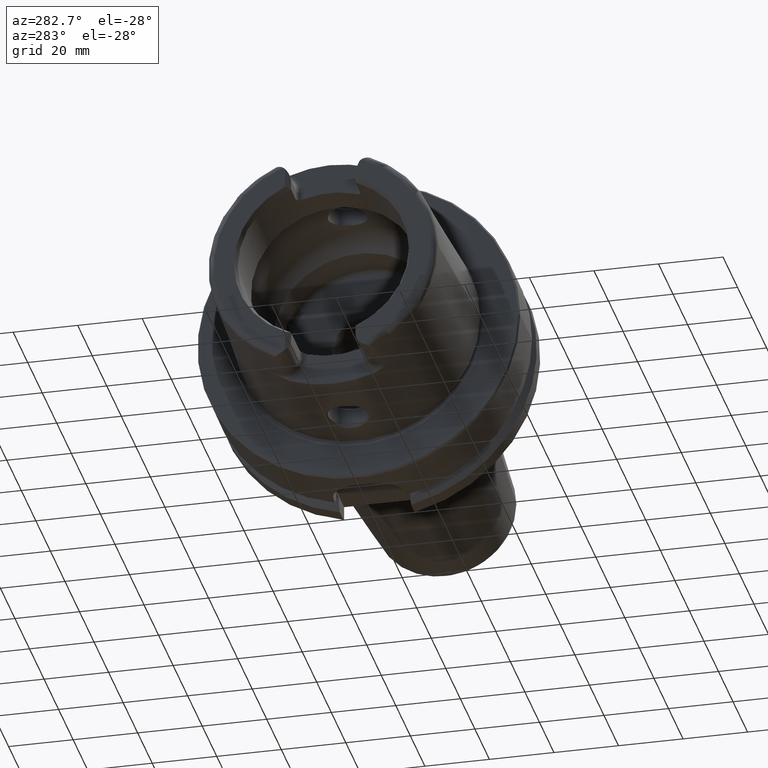
[diagram: clean part render]
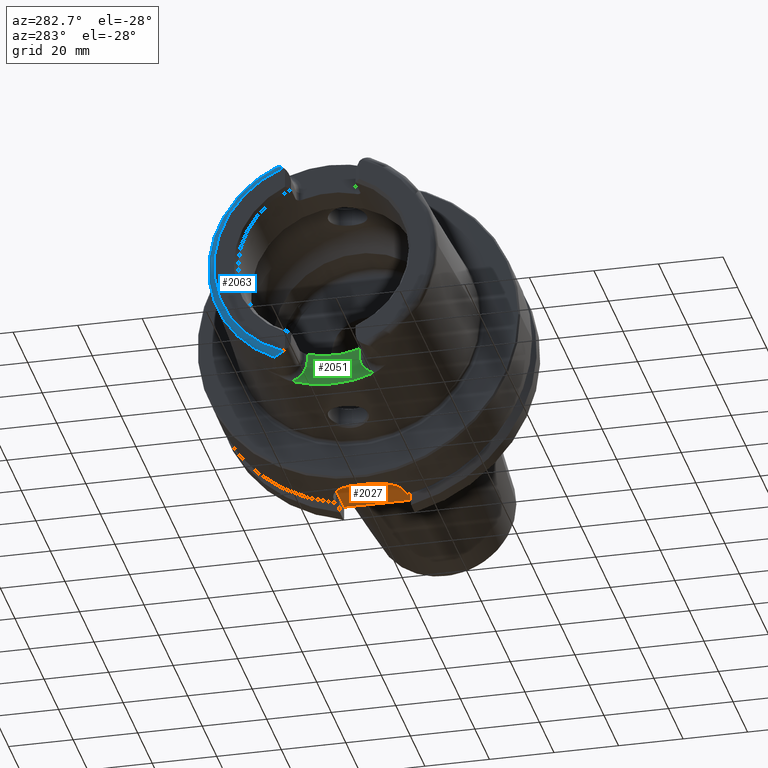
[diagram: same view with three faces highlighted in distinct colors, each labeled with its STEP entity id]
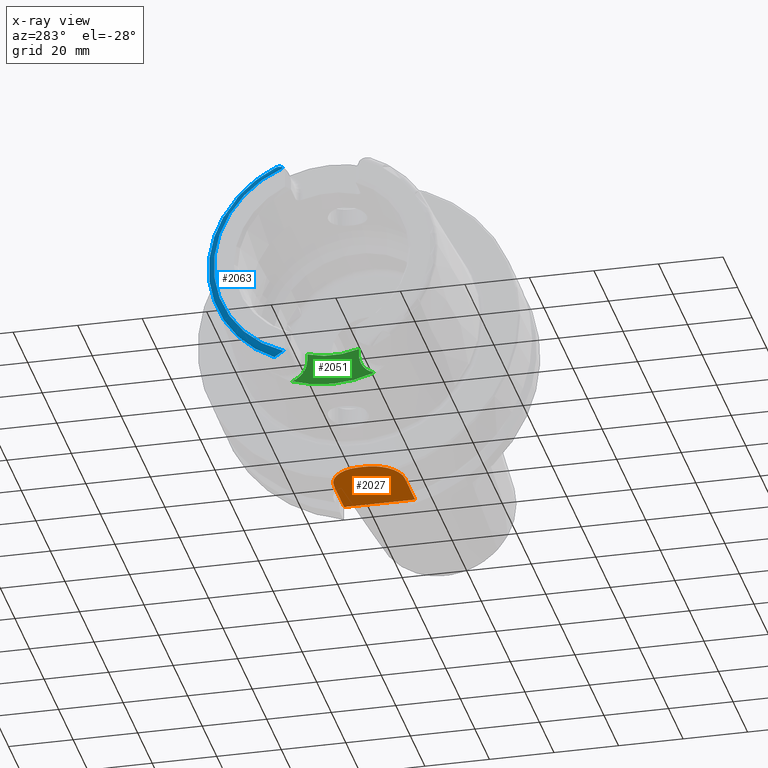
[diagram: x-ray of the same camera — body ghosted, the three highlighted faces saturated]
A machine part, auxiliary view with three faces highlighted in distinct colors.
The next image is the same camera in x-ray (body ghosted, the three faces saturated) — at least one of them is partly hidden behind the body in this view.
Their STEP definitions:

[orange] entity #2027 — the highlighted planar face has unit normal (0, 0, 1).
#118=PLANE('',#2247);
#265=FACE_OUTER_BOUND('',#393,.T.);
#393=EDGE_LOOP('',(#1659,#1660,#1661,#1662,#1663,#1664));
#467=LINE('',#3045,#574);
#524=LINE('',#4130,#631);
#536=LINE('',#4224,#643);
#538=LINE('',#4230,#645);
#574=VECTOR('',#2429,10.);
#631=VECTOR('',#2694,10.);
#643=VECTOR('',#2712,10.);
#645=VECTOR('',#2720,10.);
#741=CIRCLE('',#2242,10.);
#742=CIRCLE('',#2245,10.);
#820=VERTEX_POINT('',#3042);
#821=VERTEX_POINT('',#3044);
#947=VERTEX_POINT('',#4129);
#955=VERTEX_POINT('',#4170);
#956=VERTEX_POINT('',#4172);
#965=VERTEX_POINT('',#4226);
#1031=EDGE_CURVE('',#820,#821,#467,.T.);
#1200=EDGE_CURVE('',#821,#947,#524,.T.);
#1211=EDGE_CURVE('',#955,#956,#741,.T.);
#1222=EDGE_CURVE('',#956,#820,#536,.T.);
#1223=EDGE_CURVE('',#947,#965,#742,.T.);
#1225=EDGE_CURVE('',#965,#955,#538,.T.);
#1659=ORIENTED_EDGE('',*,*,#1225,.F.);
#1660=ORIENTED_EDGE('',*,*,#1223,.F.);
#1661=ORIENTED_EDGE('',*,*,#1200,.F.);
#1662=ORIENTED_EDGE('',*,*,#1031,.F.);
#1663=ORIENTED_EDGE('',*,*,#1222,.F.);
#1664=ORIENTED_EDGE('',*,*,#1211,.F.);
#2027=ADVANCED_FACE('',(#265),#118,.F.);
#2242=AXIS2_PLACEMENT_3D('',#4173,#2703,#2704);
#2245=AXIS2_PLACEMENT_3D('',#4227,#2715,#2716);
#2247=AXIS2_PLACEMENT_3D('',#4231,#2721,#2722);
#2429=DIRECTION('',(0.,1.,0.));
#2694=DIRECTION('',(-1.,-1.58603289232165E-16,0.));
#2703=DIRECTION('center_axis',(0.,0.,1.));
#2704=DIRECTION('ref_axis',(-1.,-2.4980018054066E-16,0.));
#2712=DIRECTION('',(1.,1.58603289232165E-16,0.));
#2715=DIRECTION('center_axis',(0.,0.,1.));
#2716=DIRECTION('ref_axis',(-2.22044604925031E-16,1.,0.));
#2720=DIRECTION('',(0.,-1.,0.));
#2721=DIRECTION('center_axis',(0.,0.,1.));
#2722=DIRECTION('ref_axis',(1.,0.,0.));
#3042=CARTESIAN_POINT('',(29.,-11.,-44.));
#3044=CARTESIAN_POINT('',(29.,11.,-44.));
#3045=CARTESIAN_POINT('',(29.,-5.55111512312578E-16,-44.));
#4129=CARTESIAN_POINT('',(15.,11.,-44.));
#4130=CARTESIAN_POINT('',(29.,11.,-44.));
#4170=CARTESIAN_POINT('',(4.99999999999999,-1.00000000000001,-44.));
#4172=CARTESIAN_POINT('',(15.,-11.,-44.));
#4173=CARTESIAN_POINT('Origin',(15.,-1.,-44.));
#4224=CARTESIAN_POINT('',(15.,-11.,-44.));
#4226=CARTESIAN_POINT('',(4.99999999999999,0.999999999999997,-44.));
#4227=CARTESIAN_POINT('Origin',(15.,1.,-44.));
#4230=CARTESIAN_POINT('',(4.99999999999999,0.999999999999997,-44.));
#4231=CARTESIAN_POINT('Origin',(17.,-1.11022302462516E-15,-44.));

[blue] entity #2063 — the highlighted toroidal blend (fillet) surface has major radius 33.6002 mm and minor (blend) radius 2 mm.
#31=B_SPLINE_CURVE_WITH_KNOTS('',3,(#3106,#3107,#3108,#3109,#3110,#3111,
#3112,#3113,#3114,#3115,#3116,#3117),.UNSPECIFIED.,.F.,.F.,(4,2,2,2,2,4),
(-0.744485085130335,-0.701284148098614,-0.656581713087918,-0.531183195108729,
-0.406814905045398,-0.320767863003946),.UNSPECIFIED.);
#36=B_SPLINE_CURVE_WITH_KNOTS('',3,(#3225,#3226,#3227,#3228,#3229,#3230,
#3231,#3232,#3233,#3234,#3235,#3236),.UNSPECIFIED.,.F.,.F.,(4,2,2,2,2,4),
(-0.33049294128038,-0.267730672592795,-0.15978363726818,-0.0785649842435549,
-0.0319753598823885,-6.79221864813266E-5),.UNSPECIFIED.);
#154=TOROIDAL_SURFACE('',#2312,33.6001839277785,2.);
#301=FACE_OUTER_BOUND('',#429,.T.);
#429=EDGE_LOOP('',(#1828,#1829,#1830,#1831));
#711=CIRCLE('',#2190,35.5976786130245);
#772=CIRCLE('',#2313,33.6001839277785);
#842=VERTEX_POINT('',#3103);
#843=VERTEX_POINT('',#3105);
#868=VERTEX_POINT('',#3215);
#869=VERTEX_POINT('',#3224);
#1060=EDGE_CURVE('',#843,#842,#31,.T.);
#1092=EDGE_CURVE('',#869,#868,#36,.T.);
#1111=EDGE_CURVE('',#843,#868,#711,.T.);
#1283=EDGE_CURVE('',#842,#869,#772,.T.);
#1828=ORIENTED_EDGE('',*,*,#1092,.T.);
#1829=ORIENTED_EDGE('',*,*,#1111,.F.);
#1830=ORIENTED_EDGE('',*,*,#1060,.T.);
#1831=ORIENTED_EDGE('',*,*,#1283,.T.);
#2063=ADVANCED_FACE('',(#301),#154,.T.);
#2190=AXIS2_PLACEMENT_3D('',#3493,#2566,#2567);
#2312=AXIS2_PLACEMENT_3D('',#4424,#2869,#2870);
#2313=AXIS2_PLACEMENT_3D('',#4425,#2871,#2872);
#2566=DIRECTION('center_axis',(1.,0.,0.));
#2567=DIRECTION('ref_axis',(0.,0.,-1.));
#2869=DIRECTION('center_axis',(1.,0.,0.));
#2870=DIRECTION('ref_axis',(0.,0.,-1.));
#2871=DIRECTION('center_axis',(1.,0.,0.));
#2872=DIRECTION('ref_axis',(0.,0.,-1.));
#3103=CARTESIAN_POINT('',(-50.,12.0743049948301,-31.355757348091));
#3105=CARTESIAN_POINT('',(-48.1000748840304,15.0787152148571,-32.2463497175327));
#3106=CARTESIAN_POINT('Ctrl Pts',(-48.1000748840304,15.0787152148571,-32.2463497175327));
#3107=CARTESIAN_POINT('Ctrl Pts',(-48.2105289331959,15.0644723890649,-32.2469009162952));
#3108=CARTESIAN_POINT('Ctrl Pts',(-48.3152849211513,15.0274043790922,-32.2483365520296));
#3109=CARTESIAN_POINT('Ctrl Pts',(-48.5158350355592,14.9227249886344,-32.2501807122049));
#3110=CARTESIAN_POINT('Ctrl Pts',(-48.6114759122293,14.853948633775,-32.2504380099703));
#3111=CARTESIAN_POINT('Ctrl Pts',(-48.9444340259589,14.5699075364914,-32.2439932048825));
#3112=CARTESIAN_POINT('Ctrl Pts',(-49.1873237794489,14.2618237213855,-32.2229124522755));
#3113=CARTESIAN_POINT('Ctrl Pts',(-49.6096022065355,13.5557805634606,-32.0777680620402));
#3114=CARTESIAN_POINT('Ctrl Pts',(-49.7790094341757,13.1775605707035,-31.9575317726829));
#3115=CARTESIAN_POINT('Ctrl Pts',(-49.9573633441756,12.558596693048,-31.6661869684752));
#3116=CARTESIAN_POINT('Ctrl Pts',(-50.,12.3094122367882,-31.5218463066117));
#3117=CARTESIAN_POINT('Ctrl Pts',(-50.,12.0743049948301,-31.355757348091));
#3215=CARTESIAN_POINT('',(-48.1000748840304,15.0787152148571,32.2463497175327));
#3224=CARTESIAN_POINT('',(-50.,12.0743049948301,31.355757348091));
#3225=CARTESIAN_POINT('Ctrl Pts',(-50.,12.0743049948301,31.355757348091));
#3226=CARTESIAN_POINT('Ctrl Pts',(-50.,12.2864160042027,31.5056008677719));
#3227=CARTESIAN_POINT('Ctrl Pts',(-49.965181241452,12.5182840828266,31.6438016135975));
#3228=CARTESIAN_POINT('Ctrl Pts',(-49.780095292634,13.1934814711235,31.9701190766011));
#3229=CARTESIAN_POINT('Ctrl Pts',(-49.5793805506892,13.6220310736955,32.097613465566));
#3230=CARTESIAN_POINT('Ctrl Pts',(-49.170216000735,14.274989330902,32.2194840260055));
#3231=CARTESIAN_POINT('Ctrl Pts',(-48.9762638716764,14.5215824129494,32.2396097025416));
#3232=CARTESIAN_POINT('Ctrl Pts',(-48.6666306582889,14.8133702905837,32.2505591140316));
#3233=CARTESIAN_POINT('Ctrl Pts',(-48.5389792055844,14.9127554064334,32.2504492219699));
#3234=CARTESIAN_POINT('Ctrl Pts',(-48.3058528414878,15.0307034754738,32.2482068363322));
#3235=CARTESIAN_POINT('Ctrl Pts',(-48.2055479344945,15.0651146787529,32.2468760596209));
#3236=CARTESIAN_POINT('Ctrl Pts',(-48.1000748840303,15.0787152148571,32.2463497175327));
#3493=CARTESIAN_POINT('Origin',(-48.1000748840304,0.,0.));
#4424=CARTESIAN_POINT('Origin',(-48.,0.,0.));
#4425=CARTESIAN_POINT('Origin',(-50.,0.,0.));

[green] entity #2051 — the highlighted planar face has unit normal (-1, 0, 0).
#124=PLANE('',#2292);
#289=FACE_OUTER_BOUND('',#417,.T.);
#417=EDGE_LOOP('',(#1774,#1775,#1776,#1777,#1778,#1779));
#549=LINE('',#4367,#656);
#552=LINE('',#4379,#659);
#656=VECTOR('',#2813,10.);
#659=VECTOR('',#2828,10.);
#710=CIRCLE('',#2189,36.25399498998);
#761=CIRCLE('',#2286,6.88);
#764=CIRCLE('',#2293,26.5);
#765=CIRCLE('',#2294,6.88);
#880=VERTEX_POINT('',#3443);
#881=VERTEX_POINT('',#3454);
#982=VERTEX_POINT('',#4351);
#984=VERTEX_POINT('',#4356);
#986=VERTEX_POINT('',#4376);
#987=VERTEX_POINT('',#4378);
#1107=EDGE_CURVE('',#880,#881,#710,.T.);
#1261=EDGE_CURVE('',#982,#880,#761,.T.);
#1263=EDGE_CURVE('',#984,#982,#549,.T.);
#1268=EDGE_CURVE('',#986,#984,#764,.T.);
#1269=EDGE_CURVE('',#987,#986,#552,.T.);
#1270=EDGE_CURVE('',#881,#987,#765,.T.);
#1774=ORIENTED_EDGE('',*,*,#1261,.F.);
#1775=ORIENTED_EDGE('',*,*,#1263,.F.);
#1776=ORIENTED_EDGE('',*,*,#1268,.F.);
#1777=ORIENTED_EDGE('',*,*,#1269,.F.);
#1778=ORIENTED_EDGE('',*,*,#1270,.F.);
#1779=ORIENTED_EDGE('',*,*,#1107,.F.);
#2051=ADVANCED_FACE('',(#289),#124,.T.);
#2189=AXIS2_PLACEMENT_3D('',#3455,#2564,#2565);
#2286=AXIS2_PLACEMENT_3D('',#4353,#2809,#2810);
#2292=AXIS2_PLACEMENT_3D('',#4375,#2824,#2825);
#2293=AXIS2_PLACEMENT_3D('',#4377,#2826,#2827);
#2294=AXIS2_PLACEMENT_3D('',#4380,#2829,#2830);
#2564=DIRECTION('center_axis',(1.,0.,0.));
#2565=DIRECTION('ref_axis',(0.,1.,0.));
#2809=DIRECTION('center_axis',(-1.,0.,0.));
#2810=DIRECTION('ref_axis',(0.,0.510937901715381,-0.8596176246394));
#2813=DIRECTION('',(0.,0.,-1.));
#2824=DIRECTION('center_axis',(-1.,0.,0.));
#2825=DIRECTION('ref_axis',(0.,0.,1.));
#2826=DIRECTION('center_axis',(-1.,0.,0.));
#2827=DIRECTION('ref_axis',(0.,1.,0.));
#2828=DIRECTION('',(0.,0.,1.));
#2829=DIRECTION('center_axis',(-1.,0.,0.));
#2830=DIRECTION('ref_axis',(0.,-0.510937901715381,-0.8596176246394));
#3443=CARTESIAN_POINT('',(-35.,-12.7918651267415,-33.9222690767105));
#3454=CARTESIAN_POINT('',(-35.,12.7918651267415,-33.9222690767105));
#3455=CARTESIAN_POINT('Origin',(-35.,0.,0.));
#4351=CARTESIAN_POINT('',(-35.,-8.01,-27.37));
#4353=CARTESIAN_POINT('Origin',(-35.,-14.89,-27.37));
#4356=CARTESIAN_POINT('',(-35.,-8.01,-25.2604414054862));
#4367=CARTESIAN_POINT('',(-35.,-8.01,-28.685));
#4375=CARTESIAN_POINT('Origin',(-35.,8.88178419700125E-15,-30.));
#4376=CARTESIAN_POINT('',(-35.,8.01,-25.2604414054862));
#4377=CARTESIAN_POINT('Origin',(-35.,0.,0.));
#4378=CARTESIAN_POINT('',(-35.,8.01,-27.37));
#4379=CARTESIAN_POINT('',(-35.,8.01,-25.));
#4380=CARTESIAN_POINT('Origin',(-35.,14.89,-27.37));